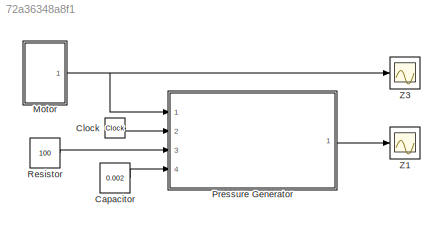
MODEL slx_72a36348a8f1
KIND model
CONFIG AbsTol = auto
CONFIG EnableMultiTasking = off
CONFIG FixedStep = auto
CONFIG MaxStep = auto
CONFIG MinStep = auto
CONFIG RelTol = 1e-3
CONFIG SampleTimeConstraint = Unconstrained
CONFIG SolverName = VariableStepAuto
CONFIG StartTime = 0.0
CONFIG StopTime = 60
BLOCK [Constant] Capacitor
  Value = 0.002
BLOCK [Clock] Clock
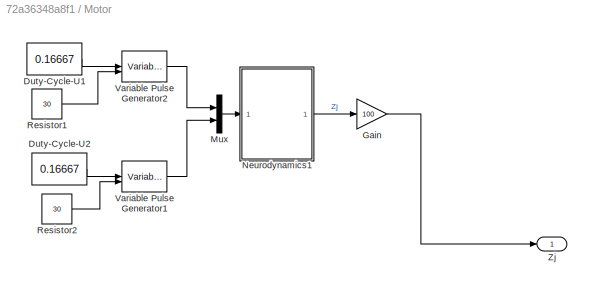
BLOCK [SubSystem] Motor
  Ports = [0, 1]
  RequestExecContextInheritance = off
BLOCK [Constant] Motor/Duty-Cycle-U1
  OutMax = [0.8]
  OutMin = [0]
  Value = 0.16667
BLOCK [Constant] Motor/Duty-Cycle-U2
  OutMax = [0.8]
  OutMin = [0]
  Value = 0.16667
BLOCK [Gain] Motor/Gain
  Gain = 100
BLOCK [Mux] Motor/Mux
  DisplayOption = bar
  Inputs = 2
  Ports = [2, 1]
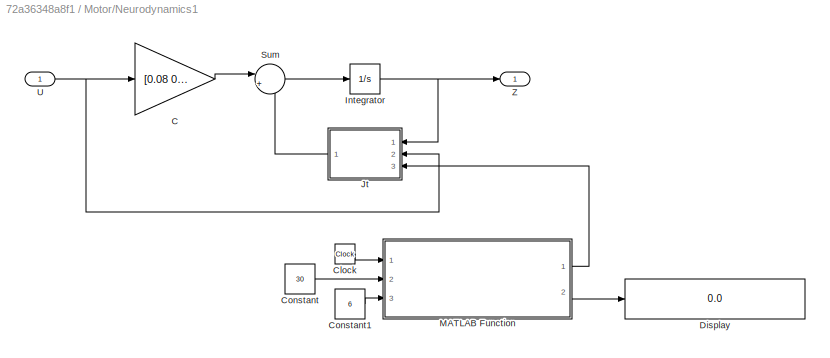
BLOCK [SubSystem] Motor/Neurodynamics1
  Ports = [1, 1]
  RequestExecContextInheritance = off
BLOCK [Gain] Motor/Neurodynamics1/C
  Gain = [0.08 0;0.06 0]
  Multiplication = Matrix(K*u)
BLOCK [Clock] Motor/Neurodynamics1/Clock
BLOCK [Constant] Motor/Neurodynamics1/Constant
  Value = 30
BLOCK [Constant] Motor/Neurodynamics1/Constant1
  Value = 6
BLOCK [Display] Motor/Neurodynamics1/Display
  Decimation = 1
  Ports = [1]
BLOCK [Integrator] Motor/Neurodynamics1/Integrator
  Ports = [1, 1]
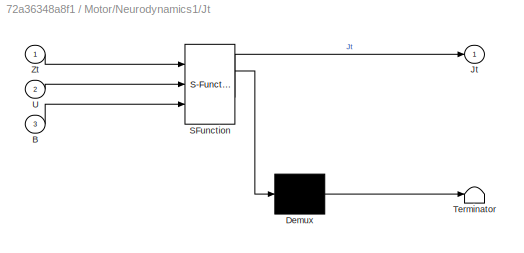
BLOCK [SubSystem] Motor/Neurodynamics1/Jt
  ErrorFcn = Stateflow.Translate.translate
  PermitHierarchicalResolution = ExplicitOnly
  Ports = [3, 1]
  RequestExecContextInheritance = off
  SFBlockType = MATLAB Function
  TreatAsAtomicUnit = on
BLOCK [Demux] Motor/Neurodynamics1/Jt/ Demux 
  Outputs = 1
  Ports = [1, 1]
BLOCK [S-Function] Motor/Neurodynamics1/Jt/ SFunction 
  EnableBusSupport = off
  FunctionName = sf_sfun
  PortCounts = [3 2]
  Ports = [3, 2]
  SFcnIsStateOwnerBlock = off
  SFunctionDeploymentMode = off
  Tag = Stateflow S-Function 12
BLOCK [Terminator] Motor/Neurodynamics1/Jt/ Terminator 
BLOCK [Inport] Motor/Neurodynamics1/Jt/B
  Port = 3
BLOCK [Outport] Motor/Neurodynamics1/Jt/Jt
BLOCK [Inport] Motor/Neurodynamics1/Jt/U
  Port = 2
BLOCK [Inport] Motor/Neurodynamics1/Jt/Zt
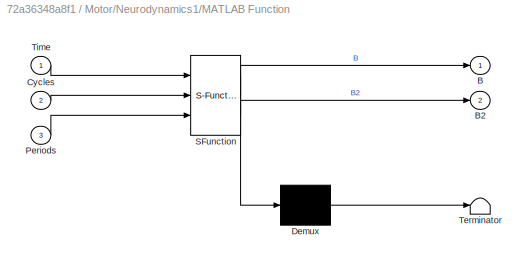
BLOCK [SubSystem] Motor/Neurodynamics1/MATLAB Function
  ErrorFcn = Stateflow.Translate.translate
  PermitHierarchicalResolution = ExplicitOnly
  Ports = [3, 2]
  RequestExecContextInheritance = off
  SFBlockType = MATLAB Function
  TreatAsAtomicUnit = on
BLOCK [Demux] Motor/Neurodynamics1/MATLAB Function/ Demux 
  Outputs = 1
  Ports = [1, 1]
BLOCK [S-Function] Motor/Neurodynamics1/MATLAB Function/ SFunction 
  EnableBusSupport = off
  FunctionName = sf_sfun
  PortCounts = [3 3]
  Ports = [3, 3]
  SFcnIsStateOwnerBlock = off
  SFunctionDeploymentMode = off
  Tag = Stateflow S-Function 4
BLOCK [Terminator] Motor/Neurodynamics1/MATLAB Function/ Terminator 
BLOCK [Outport] Motor/Neurodynamics1/MATLAB Function/B
BLOCK [Outport] Motor/Neurodynamics1/MATLAB Function/B2
  Port = 2
BLOCK [Inport] Motor/Neurodynamics1/MATLAB Function/Cycles
  Port = 2
BLOCK [Inport] Motor/Neurodynamics1/MATLAB Function/Periods
  Port = 3
BLOCK [Inport] Motor/Neurodynamics1/MATLAB Function/Time
BLOCK [Sum] Motor/Neurodynamics1/Sum
  Inputs = |++
  Ports = [2, 1]
BLOCK [Inport] Motor/Neurodynamics1/U
BLOCK [Outport] Motor/Neurodynamics1/Z
BLOCK [Constant] Motor/Resistor1
  Value = 30
BLOCK [Constant] Motor/Resistor2
  Value = 30
BLOCK [VariablePulseGenerator] Motor/Variable Pulse Generator1
  RunAtFixedTimeIntervals = on
  SampleTime = 1/10.4
BLOCK [VariablePulseGenerator] Motor/Variable Pulse Generator2
  RunAtFixedTimeIntervals = on
  SampleTime = 1/10.4
BLOCK [Outport] Motor/Zj
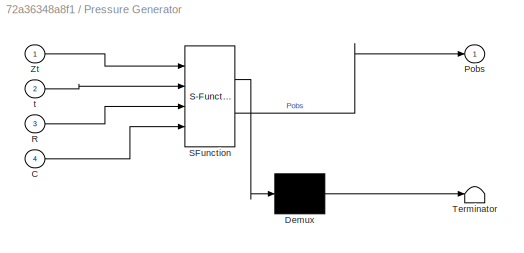
BLOCK [SubSystem] Pressure Generator
  ErrorFcn = Stateflow.Translate.translate
  PermitHierarchicalResolution = ExplicitOnly
  Ports = [4, 1]
  RequestExecContextInheritance = off
  SFBlockType = MATLAB Function
  TreatAsAtomicUnit = on
BLOCK [Demux] Pressure Generator/ Demux 
  Outputs = 1
  Ports = [1, 1]
BLOCK [S-Function] Pressure Generator/ SFunction 
  EnableBusSupport = on
  FunctionName = sf_sfun
  PortCounts = [4 2]
  Ports = [4, 2]
  SFcnIsStateOwnerBlock = off
  SFunctionDeploymentMode = off
  Tag = Stateflow S-Function 1
BLOCK [Terminator] Pressure Generator/ Terminator 
BLOCK [Inport] Pressure Generator/C
  Port = 4
BLOCK [Outport] Pressure Generator/Pobs
BLOCK [Inport] Pressure Generator/R
  Port = 3
BLOCK [Inport] Pressure Generator/Zt
BLOCK [Inport] Pressure Generator/t
  Port = 2
BLOCK [Constant] Resistor
  Value = 100
BLOCK [Scope] Z1
  Floating = off
  NumInputPorts = 1
  Ports = [1]
  ScopeSpecificationString = Simulink.scopes.TimeScopeBlockCfg('CurrentConfiguration', extmgr.ConfigurationSet(extmgr.Configuration('Core','General UI',true,'FigureColor',[0 0 0]),extmgr.Configuration('Core','Source UI',true),extmgr.Configuration('Sources','WiredSimulink',true),extmgr.Configuration('Visuals','Time Domain',true,'SerializedDisplays',{struct('MinYLimReal','-0.5375','MaxYLimReal','3.8375','YLabelReal','','MinYLim...<+1608ch>
BLOCK [Scope] Z3
  Floating = off
  NumInputPorts = 1
  Ports = [1]
  ScopeSpecificationString = Simulink.scopes.TimeScopeBlockCfg('CurrentConfiguration', extmgr.ConfigurationSet(extmgr.Configuration('Core','General UI',true,'FigureColor',[0 0 0]),extmgr.Configuration('Core','Source UI',true),extmgr.Configuration('Sources','WiredSimulink',true,'DataLoggingVariableName','ScopeData2'),extmgr.Configuration('Visuals','Time Domain',true,'SerializedDisplays',{struct('MinYLimReal','-0.5375','MaxYLim...<+1632ch>
LINE Capacitor:1 -> Pressure Generator:4
LINE Clock:1 -> Pressure Generator:2
LINE Motor/Duty-Cycle-U1:1 -> Motor/Variable Pulse Generator2:1
LINE Motor/Duty-Cycle-U2:1 -> Motor/Variable Pulse Generator1:1
LINE Motor/Gain:1 -> Motor/Zj:1
LINE Motor/Mux:1 -> Motor/Neurodynamics1:1
LINE Motor/Neurodynamics1/C:1 -> Motor/Neurodynamics1/Sum:1
LINE Motor/Neurodynamics1/Clock:1 -> Motor/Neurodynamics1/MATLAB Function:1
LINE Motor/Neurodynamics1/Constant1:1 -> Motor/Neurodynamics1/MATLAB Function:3
LINE Motor/Neurodynamics1/Constant:1 -> Motor/Neurodynamics1/MATLAB Function:2
NET Motor/Neurodynamics1/Integrator:1 -> Motor/Neurodynamics1/Jt:1, Motor/Neurodynamics1/Z:1
LINE Motor/Neurodynamics1/Jt:1 -> Motor/Neurodynamics1/Sum:2
LINE Motor/Neurodynamics1/MATLAB Function:1 -> Motor/Neurodynamics1/Jt:3
LINE Motor/Neurodynamics1/MATLAB Function:2 -> Motor/Neurodynamics1/Display:1
LINE Motor/Neurodynamics1/Sum:1 -> Motor/Neurodynamics1/Integrator:1
NET Motor/Neurodynamics1/U:1 -> Motor/Neurodynamics1/C:1, Motor/Neurodynamics1/Jt:2
LINE Motor/Neurodynamics1:1 -> Motor/Gain:1
LINE Motor/Resistor1:1 -> Motor/Variable Pulse Generator2:2
LINE Motor/Resistor2:1 -> Motor/Variable Pulse Generator1:2
LINE Motor/Variable Pulse Generator1:1 -> Motor/Mux:2
LINE Motor/Variable Pulse Generator2:1 -> Motor/Mux:1
NET Motor:1 -> Pressure Generator:1, Z3:1
LINE Pressure Generator:1 -> Z1:1
LINE Resistor:1 -> Pressure Generator:3
note: NET lines group one-source signal fan-out (src -> all destinations, sorted); 1:1 wires keep LINE
CHART Pressure Generator states=1 transitions=1
  STATE_LABEL 'eML_blk_kernel()'
  STATE_LABEL 'SCRIPT:\nfunction Pobs = fcn(Zt, t, R, C)\n\n    V= Zt(1); %Voltage or system reference;\n    Vc = V * (1 - exp(-t/(R*C))); % Voltage at the capacitor  \n    \nPobs = Vc;\n'
CHART Motor/Neurodynamics1/MATLAB Function states=1 transitions=1
  STATE_LABEL 'eML_blk_kernel()'
  STATE_LABEL 'SCRIPT:\nfunction [B, B2] = ControlledDynamic_B(Time, Cycles, Periods)\n\n   B = zeros(2,2,2);\n   %B1 = [0 0; 0 0]; %There must be a B per stimulus\n   %B2_3\n   %B2 = [-0.67 -0.91 ;-0.3 -1.21];\n   %B2_2\n   %B2 = [-0.08 -1.08; 1.2054 -0.0076];\n   %B2_1\n   %B2 = [-0.02 -0.07; 0.33 -1.31];\n   PCycles = zeros(6,1);\n   for i = 1:Periods\n       PCycles(i) = i * Cycles;   \n   end\n   %random_selector = randi(...<+720ch>'
CHART Motor/Neurodynamics1/Jt states=1 transitions=1
  STATE_LABEL 'eML_blk_kernel()'
  STATE_LABEL 'SCRIPT:\nfunction Jt = fcn(Zt, U,B)\n   A = [-0.16 -0.49;-0.02 -0.33];\n   nRegions  = size(A,1);\n   M = size(U,1); %nStimuli\n   simulationLength = size(U,2);\n%    B = zeros(2,2,2);\n%    B1 = [0 0; 0 0]; %There must be a B per stimulus\n%    %B2_3\n%    B2 = [-0.67 -0.91 ;-0.3 -1.21];\n%    %B2_2\n%    %B2 = [-0.08 -1.08; 1.2054 -0.0076];\n%    %B2_1\n%    %B2 = [-0.02 -0.07; 0.33 -1.31];\n%    B(:,:,1) = B...<+416ch>'
CHART  states=0 transitions=0
CHART  states=0 transitions=0
CHART  states=0 transitions=0
